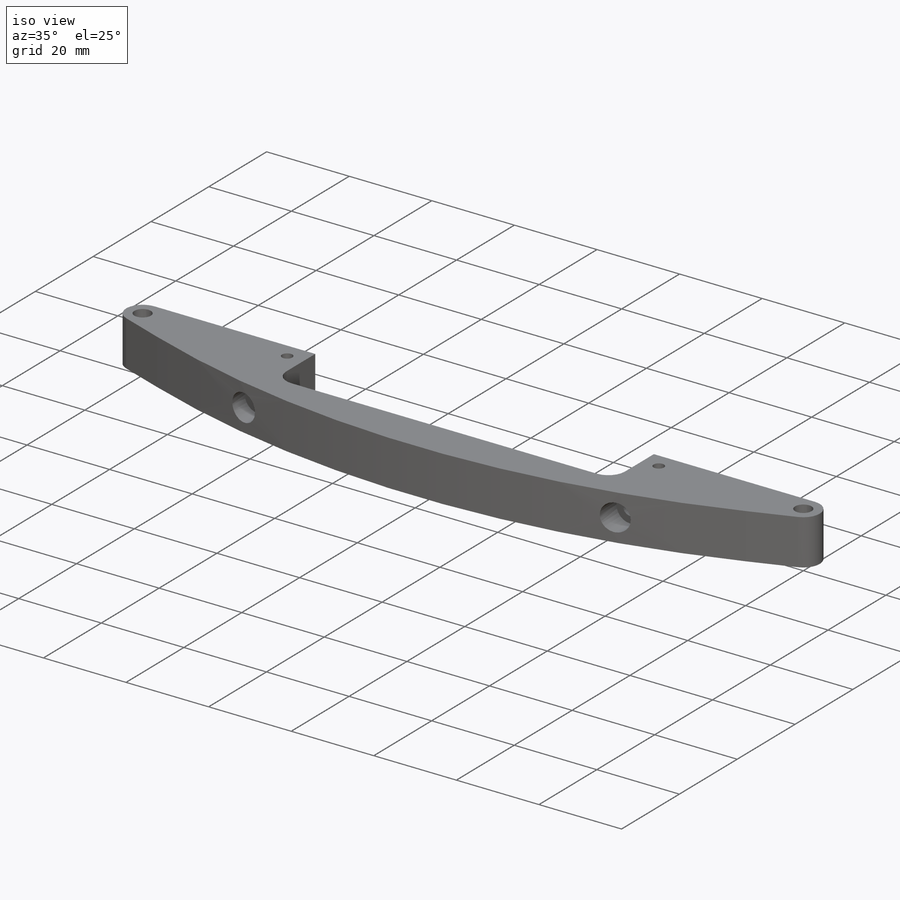
[diagram: iso view]
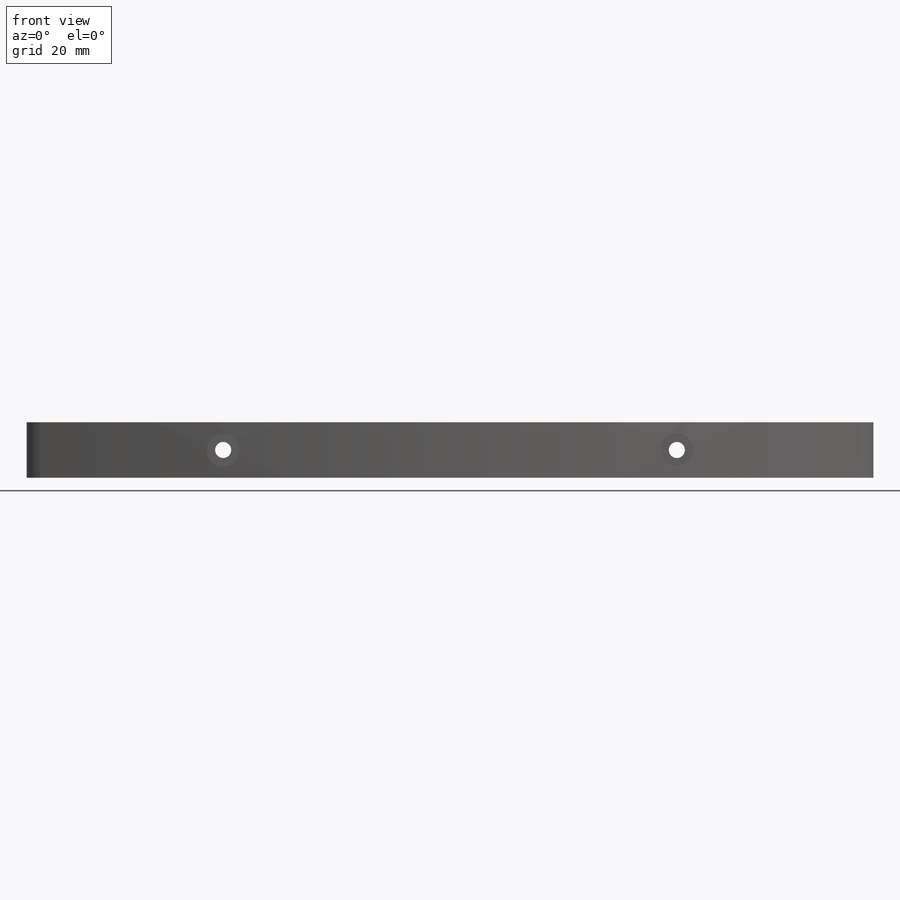
[diagram: front view]
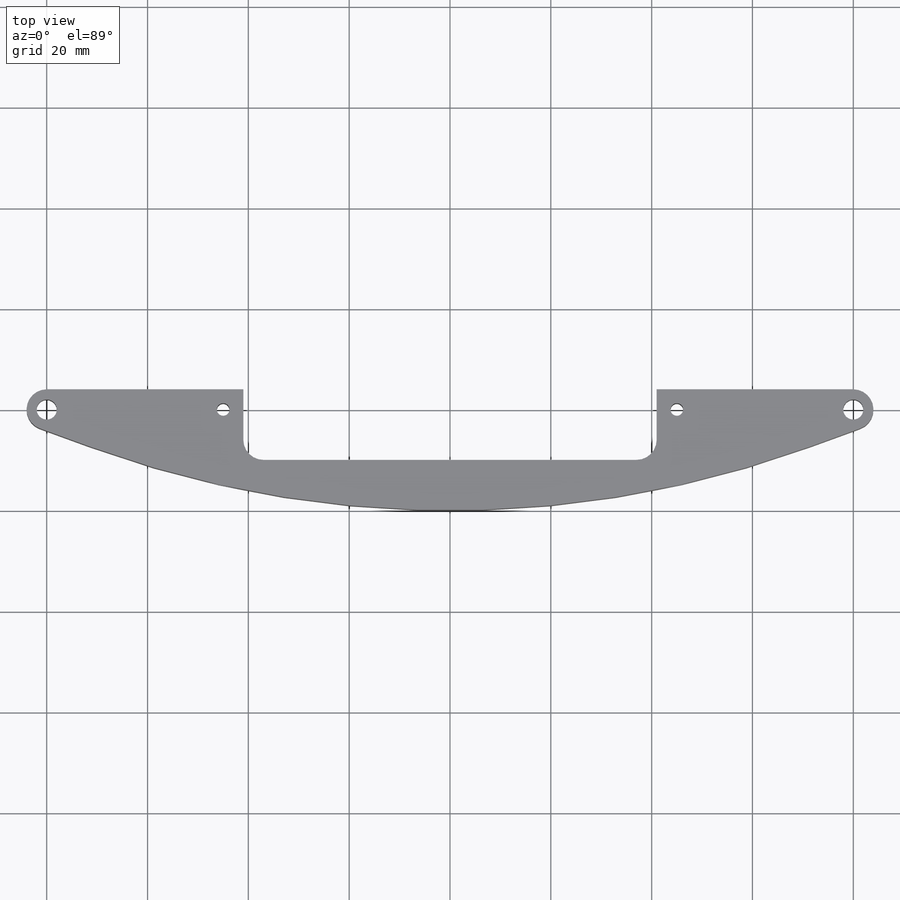
[diagram: top view]
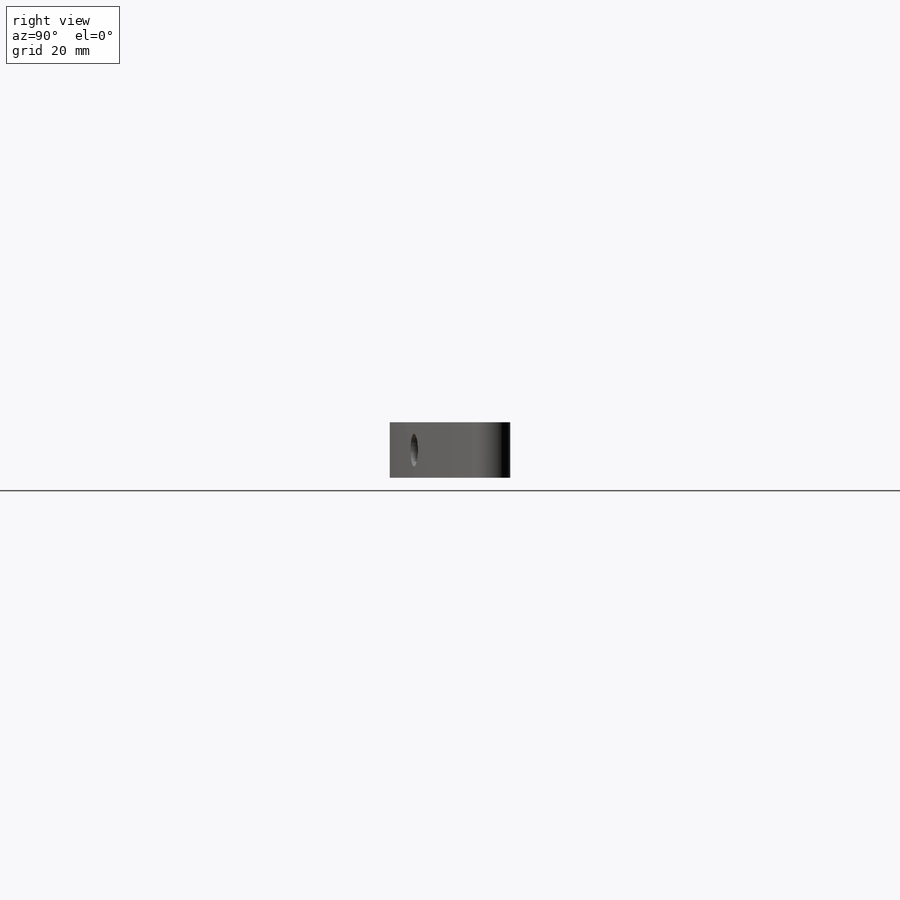
[diagram: right view]
SOLIDWORKS PART (.sldprt)
format: sldprt  version: not decoded by parser v0  size: 294,400 bytes
history: native  units: mm
features: sketch x5, plane x4, mirror x2, material x1, extrude x1, fillet x1, hole x1, thread x1 (+9 scaffold rows collapsed)
feature tree (25):
  scaffold x9  (default folders/planes/origin — collapsed)
  material  "2014-T6"
  plane  "Ebene vorne"
  plane  "Ebene oben"
  plane  "Ebene rechts"
  sketch  "Skizze1"  dims[c1.D2=8.0mm c1.D9=27.0mm c1.D3=8.0mm c1.D7=27.0mm c1.D10=4.0mm c1.D1=165.0mm c2.D3=20.0mm c2.D4=185.0mm c2.D5=196.0mm c2.D6=~30.766391mm c3.D6=20.0deg c3.D7=165.0mm c4.D7=10.0deg c4.D8=90.0mm c4.D10=~15.188501mm c4.D1=196.0mm c4.D2=160.0mm c4.D4=165.0mm c5.D4=10.0deg c5.D5=165.0mm c6.D5=20.0deg c6.D6=~10.992609mm c6.D8=90.0mm c6.D9=20.0mm c6.D10=185.0mm c6.D11=16.0mm c6.D12=11.0mm c6.D1=90.0mm c6.D7=4.0mm c7.D8=10.0mm c7.D7=90.0mm c7.D11=4.0mm c7.D12=6.0mm c7.D4=185.0mm c7.D6=4.0mm c8.D7=90.0mm c8.D6=4.0mm c8.D4=90.0mm]
  extrude  "Aufsatz-Linear austragen1"  Depth=11mm
  fillet  "Verrundung1"  Radius=4mm
  hole  "M3 Gewindebohrung1"  [1 undecoded]
  sketch  "Skizze6"  dims[D1=4.0mm]
  thread  "Bohrungsgewinde1"  Diameter=3mm  [1 undecoded]
  sketch  "Skizze5"  dims[hole-wizard template sketch: 60 standard entries collapsed; hole parameters kept: c18.Bohrungstiefe=11.0mm]
  mirror  "Spiegeln3"
  plane  "Ebene1"
  mirror  "Stirnsenkung für  M3 Zylinderschraube mit Schlitz/Kreuzschlitz1"
  sketch  "Skizze4"  dims[D1=4.0mm]
  sketch  "Skizze3"  dims[hole-wizard template sketch: 42 standard entries collapsed; hole parameters kept: c12.Bohrungstiefe=24.0mm c12.Senkdurchmesser2=6.5mm c12.Senktiefe2=10.0mm]
decode coverage: 8 of 11 modeling features carry decoded parameters
note: ~ marks probable driven/reference dimensions
note: 2 parameter values undecoded
note: suppression state not decoded; provenance and decode notes live in map.json
